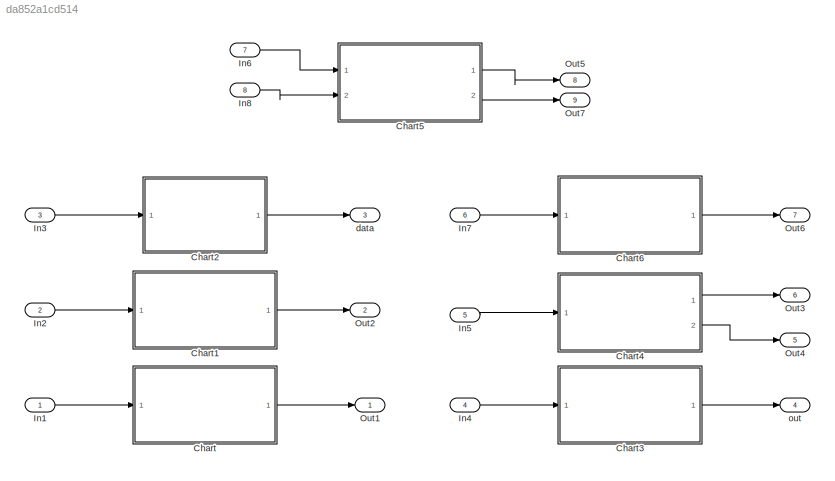
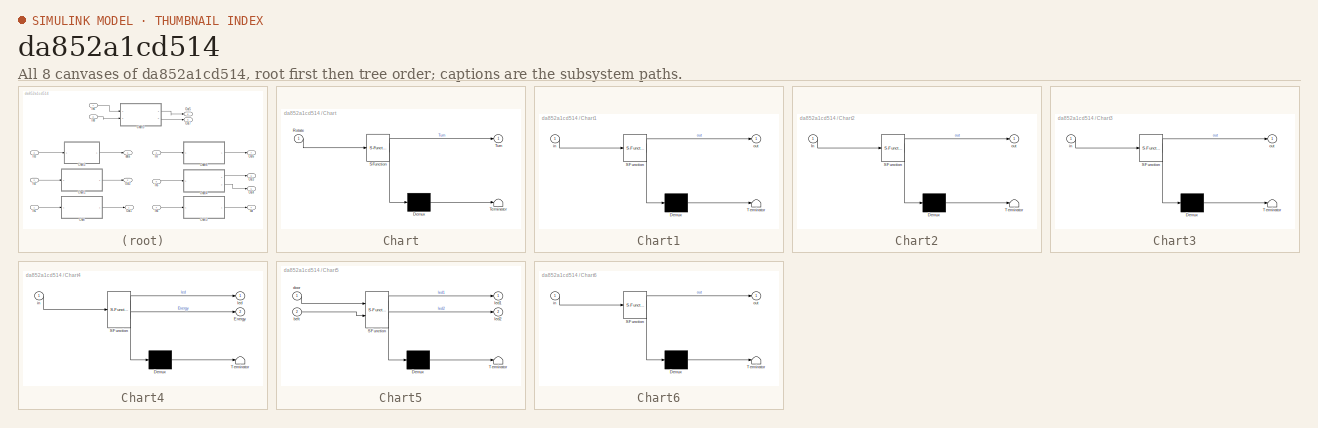
[diagram: thumbnail index - all 8 canvases of the model, root first then tree order]
MODEL slx_da852a1cd514
KIND model
CONFIG AbsTol = auto
CONFIG EnableMultiTasking = on
CONFIG FixedStep = 0.1
CONFIG MaxStep = auto
CONFIG MinStep = auto
CONFIG RelTol = 1e-3
CONFIG SampleTimeConstraint = Unconstrained
CONFIG SolverName = FixedStepDiscrete
CONFIG StartTime = 0.0
CONFIG StopTime = 10.0
BLOCK [SubSystem] Chart
  ErrorFcn = Stateflow.Translate.translate
  PermitHierarchicalResolution = ExplicitOnly
  Ports = [1, 1]
  RequestExecContextInheritance = off
  SFBlockType = Chart
  TreatAsAtomicUnit = on
BLOCK [Demux] Chart/ Demux 
  Outputs = 1
  Ports = [1, 1]
BLOCK [S-Function] Chart/ SFunction 
  EnableBusSupport = on
  FunctionName = sf_sfun
  PortCounts = [1 2]
  Ports = [1, 2]
  SFcnIsStateOwnerBlock = off
  SFunctionDeploymentMode = off
  Tag = Stateflow S-Function 3
BLOCK [Terminator] Chart/ Terminator 
BLOCK [Inport] Chart/Rotate
BLOCK [Outport] Chart/Turn
BLOCK [SubSystem] Chart1
  ErrorFcn = Stateflow.Translate.translate
  PermitHierarchicalResolution = ExplicitOnly
  Ports = [1, 1]
  RequestExecContextInheritance = off
  SFBlockType = Chart
  TreatAsAtomicUnit = on
BLOCK [Demux] Chart1/ Demux 
  Outputs = 1
  Ports = [1, 1]
BLOCK [S-Function] Chart1/ SFunction 
  EnableBusSupport = on
  FunctionName = sf_sfun
  PortCounts = [1 2]
  Ports = [1, 2]
  SFcnIsStateOwnerBlock = off
  SFunctionDeploymentMode = off
  Tag = Stateflow S-Function 1
BLOCK [Terminator] Chart1/ Terminator 
BLOCK [Inport] Chart1/in
BLOCK [Outport] Chart1/out
BLOCK [SubSystem] Chart2
  ErrorFcn = Stateflow.Translate.translate
  PermitHierarchicalResolution = ExplicitOnly
  Ports = [1, 1]
  RequestExecContextInheritance = off
  SFBlockType = Chart
  TreatAsAtomicUnit = on
BLOCK [Demux] Chart2/ Demux 
  Outputs = 1
  Ports = [1, 1]
BLOCK [S-Function] Chart2/ SFunction 
  EnableBusSupport = on
  FunctionName = sf_sfun
  PortCounts = [1 2]
  Ports = [1, 2]
  SFcnIsStateOwnerBlock = off
  SFunctionDeploymentMode = off
  Tag = Stateflow S-Function 2
BLOCK [Terminator] Chart2/ Terminator 
BLOCK [Inport] Chart2/In
BLOCK [Outport] Chart2/out
BLOCK [SubSystem] Chart3
  ErrorFcn = Stateflow.Translate.translate
  PermitHierarchicalResolution = ExplicitOnly
  Ports = [1, 1]
  RequestExecContextInheritance = off
  SFBlockType = Chart
  TreatAsAtomicUnit = on
BLOCK [Demux] Chart3/ Demux 
  Outputs = 1
  Ports = [1, 1]
BLOCK [S-Function] Chart3/ SFunction 
  EnableBusSupport = on
  FunctionName = sf_sfun
  PortCounts = [1 2]
  Ports = [1, 2]
  SFcnIsStateOwnerBlock = off
  SFunctionDeploymentMode = off
  Tag = Stateflow S-Function 4
BLOCK [Terminator] Chart3/ Terminator 
BLOCK [Inport] Chart3/in
BLOCK [Outport] Chart3/out
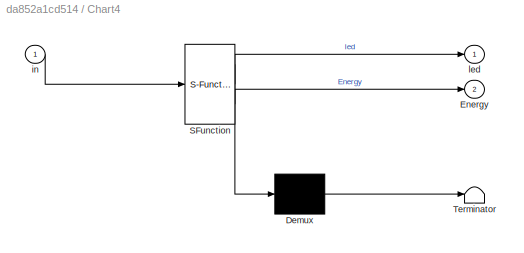
BLOCK [SubSystem] Chart4
  ErrorFcn = Stateflow.Translate.translate
  PermitHierarchicalResolution = ExplicitOnly
  Ports = [1, 2]
  RequestExecContextInheritance = off
  SFBlockType = Chart
  TreatAsAtomicUnit = on
BLOCK [Demux] Chart4/ Demux 
  Outputs = 1
  Ports = [1, 1]
BLOCK [S-Function] Chart4/ SFunction 
  EnableBusSupport = on
  FunctionName = sf_sfun
  PortCounts = [1 3]
  Ports = [1, 3]
  SFcnIsStateOwnerBlock = off
  SFunctionDeploymentMode = off
  Tag = Stateflow S-Function 5
BLOCK [Terminator] Chart4/ Terminator 
BLOCK [Outport] Chart4/Energy
  Port = 2
BLOCK [Inport] Chart4/in
BLOCK [Outport] Chart4/led
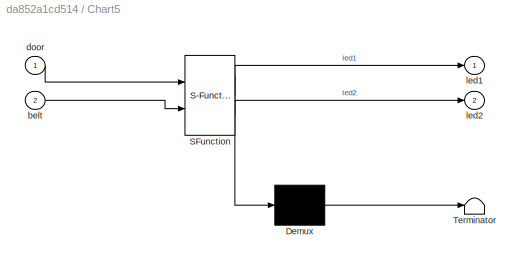
BLOCK [SubSystem] Chart5
  ErrorFcn = Stateflow.Translate.translate
  PermitHierarchicalResolution = ExplicitOnly
  Ports = [2, 2]
  RequestExecContextInheritance = off
  SFBlockType = Chart
  TreatAsAtomicUnit = on
BLOCK [Demux] Chart5/ Demux 
  Outputs = 1
  Ports = [1, 1]
BLOCK [S-Function] Chart5/ SFunction 
  EnableBusSupport = on
  FunctionName = sf_sfun
  PortCounts = [2 3]
  Ports = [2, 3]
  SFcnIsStateOwnerBlock = off
  SFunctionDeploymentMode = off
  Tag = Stateflow S-Function 6
BLOCK [Terminator] Chart5/ Terminator 
BLOCK [Inport] Chart5/belt
  Port = 2
BLOCK [Inport] Chart5/door
BLOCK [Outport] Chart5/led1
BLOCK [Outport] Chart5/led2
  Port = 2
BLOCK [SubSystem] Chart6
  ErrorFcn = Stateflow.Translate.translate
  PermitHierarchicalResolution = ExplicitOnly
  Ports = [1, 1]
  RequestExecContextInheritance = off
  SFBlockType = Chart
  TreatAsAtomicUnit = on
BLOCK [Demux] Chart6/ Demux 
  Outputs = 1
  Ports = [1, 1]
BLOCK [S-Function] Chart6/ SFunction 
  EnableBusSupport = on
  FunctionName = sf_sfun
  PortCounts = [1 2]
  Ports = [1, 2]
  SFcnIsStateOwnerBlock = off
  SFunctionDeploymentMode = off
  Tag = Stateflow S-Function 7
BLOCK [Terminator] Chart6/ Terminator 
BLOCK [Inport] Chart6/in
BLOCK [Outport] Chart6/out
BLOCK [Inport] In1
BLOCK [Inport] In2
  Port = 2
BLOCK [Inport] In3
  Port = 3
BLOCK [Inport] In4
  Port = 4
BLOCK [Inport] In5
  Port = 5
BLOCK [Inport] In6
  Port = 7
BLOCK [Inport] In7
  Port = 6
BLOCK [Inport] In8
  Port = 8
BLOCK [Outport] Out1
BLOCK [Outport] Out2
  Port = 2
BLOCK [Outport] Out3
  Port = 6
BLOCK [Outport] Out4
  Port = 5
BLOCK [Outport] Out5
  Port = 8
BLOCK [Outport] Out6
  Port = 7
BLOCK [Outport] Out7
  Port = 9
BLOCK [Outport] data
  Port = 3
BLOCK [Outport] out
  Port = 4
LINE Chart1:1 -> Out2:1
LINE Chart2:1 -> data:1
LINE Chart3:1 -> out:1
LINE Chart4:1 -> Out3:1
LINE Chart4:2 -> Out4:1
LINE Chart5:1 -> Out5:1
LINE Chart5:2 -> Out7:1
LINE Chart6:1 -> Out6:1
LINE Chart:1 -> Out1:1
LINE In1:1 -> Chart:1
LINE In2:1 -> Chart1:1
LINE In3:1 -> Chart2:1
LINE In4:1 -> Chart3:1
LINE In5:1 -> Chart4:1
LINE In6:1 -> Chart5:1
LINE In7:1 -> Chart6:1
LINE In8:1 -> Chart5:2
CHART Chart4 states=4 transitions=4
  STATE_LABEL 'S1'
  STATE_LABEL 'S2'
  STATE_LABEL 'S3'
  STATE_LABEL 'S4'
CHART Chart5 states=4 transitions=8
  STATE_LABEL 'S2'
  STATE_LABEL 'S1'
  STATE_LABEL 'S4'
  STATE_LABEL 'S3'
CHART Chart6 states=2 transitions=3
  STATE_LABEL 'S1'
  STATE_LABEL 'S2'
CHART Chart1 states=3 transitions=5
  STATE_LABEL 'S1'
  STATE_LABEL 'S3'
  STATE_LABEL 'S2'
CHART Chart2 states=2 transitions=3
  STATE_LABEL 'S2'
  STATE_LABEL 'S1\n'
CHART Chart states=4 transitions=9
  STATE_LABEL 'S2'
  STATE_LABEL 'S1'
  STATE_LABEL 'S4'
  STATE_LABEL 'S3'
CHART Chart3 states=5 transitions=9
  STATE_LABEL 'S1'
  STATE_LABEL 'S2\n'
  STATE_LABEL 'S3'
  STATE_LABEL 'S4'
  STATE_LABEL 'S5'
CHART  states=0 transitions=0
CHART  states=0 transitions=0
CHART  states=0 transitions=0
CHART  states=0 transitions=0
CHART  states=0 transitions=0
CHART  states=0 transitions=0
CHART  states=0 transitions=0
